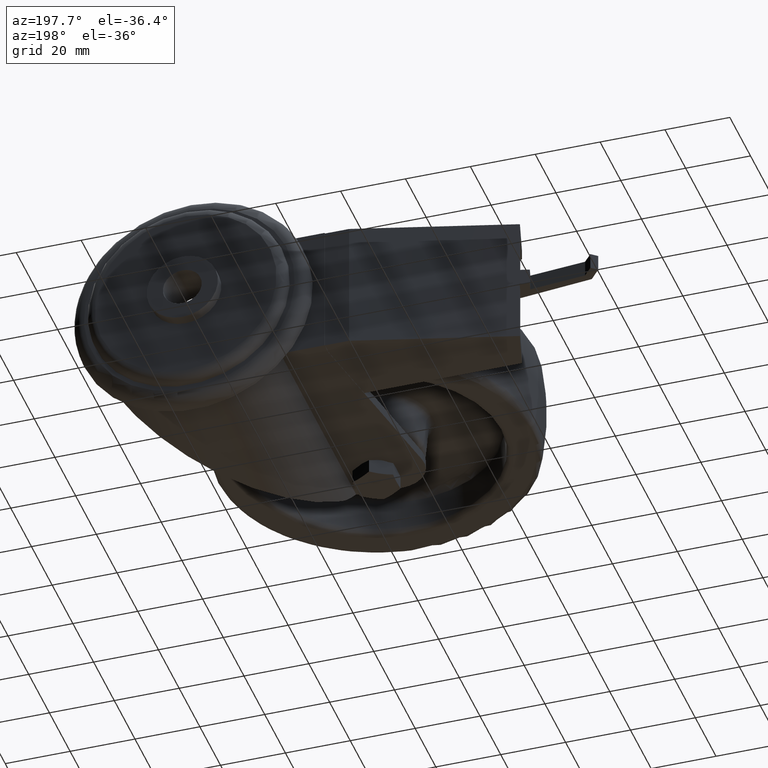
[diagram: clean part render]
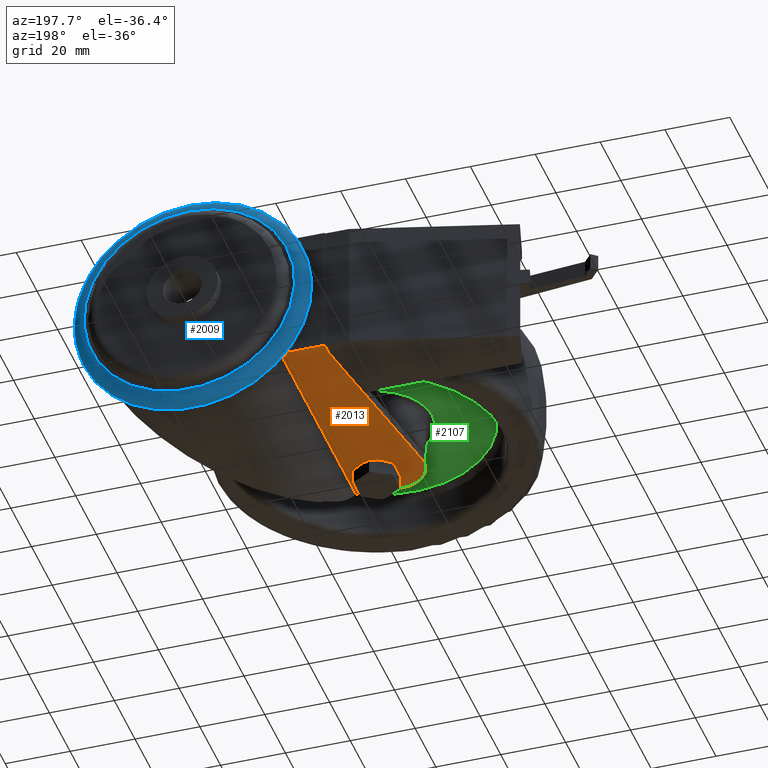
[diagram: same view with three faces highlighted in distinct colors, each labeled with its STEP entity id]
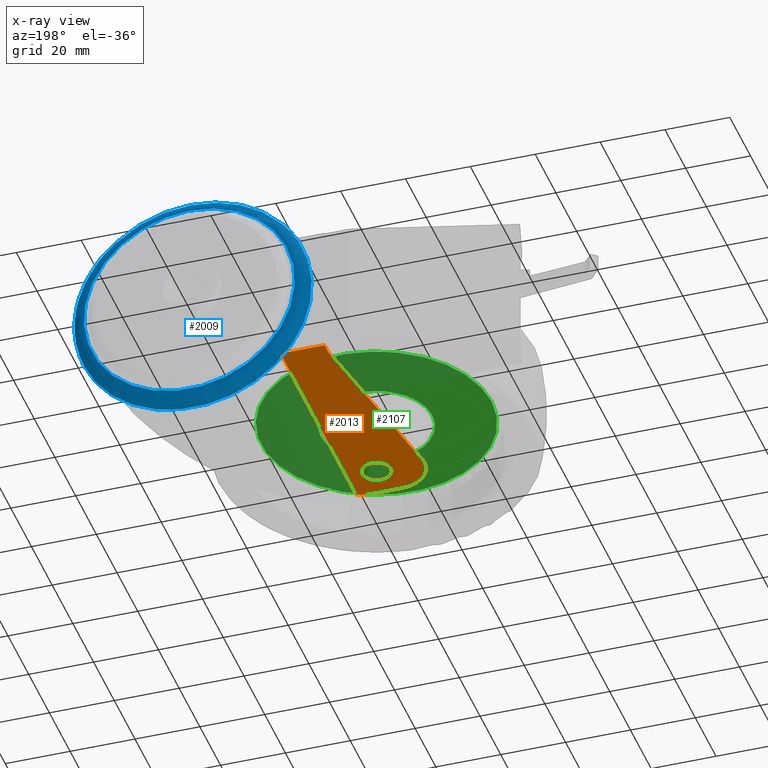
[diagram: x-ray of the same camera — body ghosted, the three highlighted faces saturated]
A machine part, auxiliary view with three faces highlighted in distinct colors.
The next image is the same camera in x-ray (body ghosted, the three faces saturated) — at least one of them is partly hidden behind the body in this view.
Their STEP definitions:

[orange] entity #2013 — the highlighted planar face has unit normal (0, 0, 1).
#160=FACE_BOUND('',#402,.T.);
#188=PLANE('',#2285);
#265=FACE_OUTER_BOUND('',#401,.T.);
#401=EDGE_LOOP('',(#1515,#1516,#1517,#1518,#1519,#1520,#1521));
#402=EDGE_LOOP('',(#1522));
#524=CIRCLE('',#2244,10.);
#527=CIRCLE('',#2252,9.99999999999999);
#543=CIRCLE('',#2286,4.5);
#646=LINE('',#3144,#779);
#670=LINE('',#3240,#803);
#672=LINE('',#3256,#805);
#676=LINE('',#3266,#809);
#681=LINE('',#3304,#814);
#779=VECTOR('',#2507,1000.);
#803=VECTOR('',#2563,1000.);
#805=VECTOR('',#2587,1000.);
#809=VECTOR('',#2597,1000.);
#814=VECTOR('',#2648,1000.);
#912=VERTEX_POINT('',#3141);
#913=VERTEX_POINT('',#3143);
#932=VERTEX_POINT('',#3190);
#933=VERTEX_POINT('',#3192);
#941=VERTEX_POINT('',#3238);
#944=VERTEX_POINT('',#3255);
#947=VERTEX_POINT('',#3263);
#958=VERTEX_POINT('',#3305);
#1099=EDGE_CURVE('',#912,#913,#646,.T.);
#1124=EDGE_CURVE('',#933,#932,#524,.F.);
#1136=EDGE_CURVE('',#941,#932,#670,.T.);
#1138=EDGE_CURVE('',#941,#913,#527,.F.);
#1145=EDGE_CURVE('',#944,#933,#672,.T.);
#1151=EDGE_CURVE('',#944,#947,#676,.T.);
#1168=EDGE_CURVE('',#947,#912,#681,.T.);
#1169=EDGE_CURVE('',#958,#958,#543,.F.);
#1515=ORIENTED_EDGE('',*,*,#1145,.T.);
#1516=ORIENTED_EDGE('',*,*,#1124,.T.);
#1517=ORIENTED_EDGE('',*,*,#1136,.F.);
#1518=ORIENTED_EDGE('',*,*,#1138,.T.);
#1519=ORIENTED_EDGE('',*,*,#1099,.F.);
#1520=ORIENTED_EDGE('',*,*,#1168,.F.);
#1521=ORIENTED_EDGE('',*,*,#1151,.F.);
#1522=ORIENTED_EDGE('',*,*,#1169,.F.);
#2013=ADVANCED_FACE('',(#265,#160),#188,.F.);
#2244=AXIS2_PLACEMENT_3D('',#3193,#2547,#2548);
#2252=AXIS2_PLACEMENT_3D('',#3244,#2570,#2571);
#2285=AXIS2_PLACEMENT_3D('',#3303,#2646,#2647);
#2286=AXIS2_PLACEMENT_3D('',#3306,#2649,#2650);
#2507=DIRECTION('',(-0.1685477470756,-0.985693490368958,0.));
#2547=DIRECTION('center_axis',(0.,0.,1.));
#2548=DIRECTION('ref_axis',(1.,0.,0.));
#2563=DIRECTION('',(1.,0.,0.));
#2570=DIRECTION('center_axis',(0.,0.,1.));
#2571=DIRECTION('ref_axis',(1.,0.,0.));
#2587=DIRECTION('',(0.,-1.,0.));
#2597=DIRECTION('',(-1.,0.,0.));
#2646=DIRECTION('center_axis',(0.,0.,1.));
#2647=DIRECTION('ref_axis',(1.,0.,0.));
#2648=DIRECTION('',(0.,-1.,0.));
#2649=DIRECTION('center_axis',(0.,0.,1.));
#2650=DIRECTION('ref_axis',(1.,0.,0.));
#3141=CARTESIAN_POINT('',(-4.5,60.5,-20.5));
#3143=CARTESIAN_POINT('',(-14.5569349036896,1.685477470756,-20.5));
#3144=CARTESIAN_POINT('',(-14.4234156913816,2.46631863116723,-20.5));
#3190=CARTESIAN_POINT('',(4.69999999999999,-10.,-20.5));
#3192=CARTESIAN_POINT('',(9.1397989180285,-8.96036749064863,-20.5));
#3193=CARTESIAN_POINT('Origin',(4.69999999999999,6.07153216591882E-15,-20.5));
#3238=CARTESIAN_POINT('',(-4.7,-10.,-20.5));
#3240=CARTESIAN_POINT('',(0.,-10.,-20.5));
#3244=CARTESIAN_POINT('Origin',(-4.70000000000001,-5.20417042793042E-15,
-20.5));
#3255=CARTESIAN_POINT('',(9.1397989180285,64.2,-20.5));
#3256=CARTESIAN_POINT('',(9.1397989180285,-10.,-20.5));
#3263=CARTESIAN_POINT('',(-4.5,64.2,-20.5));
#3266=CARTESIAN_POINT('',(35.,64.2,-20.5));
#3303=CARTESIAN_POINT('Origin',(0.,0.,-20.5));
#3304=CARTESIAN_POINT('',(-4.5,0.,-20.5));
#3305=CARTESIAN_POINT('',(4.5,0.,-20.5));
#3306=CARTESIAN_POINT('Origin',(0.,0.,-20.5));

[blue] entity #2009 — the highlighted toroidal blend (fillet) surface has major radius 32.5 mm and minor (blend) radius 4 mm.
#138=TOROIDAL_SURFACE('',#2277,32.5,4.00000000000003);
#261=FACE_OUTER_BOUND('',#395,.T.);
#395=EDGE_LOOP('',(#1496,#1497,#1498,#1499));
#538=CIRCLE('',#2276,32.5);
#539=CIRCLE('',#2278,36.5);
#540=CIRCLE('',#2279,4.00000000000003);
#954=VERTEX_POINT('',#3288);
#955=VERTEX_POINT('',#3291);
#1161=EDGE_CURVE('',#954,#954,#538,.T.);
#1162=EDGE_CURVE('',#955,#955,#539,.T.);
#1163=EDGE_CURVE('',#955,#954,#540,.T.);
#1496=ORIENTED_EDGE('',*,*,#1162,.F.);
#1497=ORIENTED_EDGE('',*,*,#1163,.T.);
#1498=ORIENTED_EDGE('',*,*,#1161,.T.);
#1499=ORIENTED_EDGE('',*,*,#1163,.F.);
#2009=ADVANCED_FACE('',(#261),#138,.T.);
#2276=AXIS2_PLACEMENT_3D('',#3289,#2626,#2627);
#2277=AXIS2_PLACEMENT_3D('',#3290,#2628,#2629);
#2278=AXIS2_PLACEMENT_3D('',#3292,#2630,#2631);
#2279=AXIS2_PLACEMENT_3D('',#3293,#2632,#2633);
#2626=DIRECTION('center_axis',(0.,-1.,0.));
#2627=DIRECTION('ref_axis',(0.,0.,-1.));
#2628=DIRECTION('center_axis',(0.,-1.,0.));
#2629=DIRECTION('ref_axis',(0.,0.,-1.));
#2630=DIRECTION('center_axis',(0.,-1.,0.));
#2631=DIRECTION('ref_axis',(0.,0.,-1.));
#2632=DIRECTION('center_axis',(-1.,0.,-1.2166827667125E-16));
#2633=DIRECTION('ref_axis',(-1.2166827667125E-16,0.,1.));
#3288=CARTESIAN_POINT('',(35.,71.2,32.5));
#3289=CARTESIAN_POINT('Origin',(35.,71.2,0.));
#3290=CARTESIAN_POINT('Origin',(35.,67.2,0.));
#3291=CARTESIAN_POINT('',(35.,67.2,36.5));
#3292=CARTESIAN_POINT('Origin',(35.,67.2,0.));
#3293=CARTESIAN_POINT('Origin',(35.,67.2,32.5));

[green] entity #2107 — the highlighted conical surface has half-angle 87 deg.
#101=CONICAL_SURFACE('',#2449,35.5002706639117,1.51843644923507);
#359=FACE_OUTER_BOUND('',#507,.T.);
#507=EDGE_LOOP('',(#1936,#1937,#1938,#1939));
#610=CIRCLE('',#2448,35.5002706639117);
#611=CIRCLE('',#2450,17.206507021163);
#758=LINE('',#3804,#891);
#891=VECTOR('',#3053,35.5002706639117);
#1071=VERTEX_POINT('',#3799);
#1072=VERTEX_POINT('',#3803);
#1360=EDGE_CURVE('',#1071,#1071,#610,.T.);
#1361=EDGE_CURVE('',#1071,#1072,#758,.T.);
#1362=EDGE_CURVE('',#1072,#1072,#611,.T.);
#1936=ORIENTED_EDGE('',*,*,#1360,.F.);
#1937=ORIENTED_EDGE('',*,*,#1361,.T.);
#1938=ORIENTED_EDGE('',*,*,#1362,.T.);
#1939=ORIENTED_EDGE('',*,*,#1361,.F.);
#2107=ADVANCED_FACE('',(#359),#101,.T.);
#2448=AXIS2_PLACEMENT_3D('',#3801,#3049,#3050);
#2449=AXIS2_PLACEMENT_3D('',#3802,#3051,#3052);
#2450=AXIS2_PLACEMENT_3D('',#3805,#3054,#3055);
#3049=DIRECTION('center_axis',(0.,0.,1.));
#3050=DIRECTION('ref_axis',(1.,0.,0.));
#3051=DIRECTION('center_axis',(0.,0.,1.));
#3052=DIRECTION('ref_axis',(1.,0.,0.));
#3053=DIRECTION('',(0.998629534754574,1.2229684632712E-16,-0.0523359562429406));
#3054=DIRECTION('center_axis',(0.,0.,1.));
#3055=DIRECTION('ref_axis',(1.,0.,0.));
#3799=CARTESIAN_POINT('',(-35.5002706639117,-4.34752928374241E-15,-2.85950965055749));
#3801=CARTESIAN_POINT('Origin',(0.,0.,-2.85950965055749));
#3802=CARTESIAN_POINT('Origin',(0.,0.,-2.85950965055749));
#3803=CARTESIAN_POINT('',(-17.206507021163,-2.10718937479737E-15,-3.81824517780273));
#3804=CARTESIAN_POINT('',(-35.5002706639117,-4.34752928374241E-15,-2.85950965055749));
#3805=CARTESIAN_POINT('Origin',(0.,0.,-3.81824517780279));